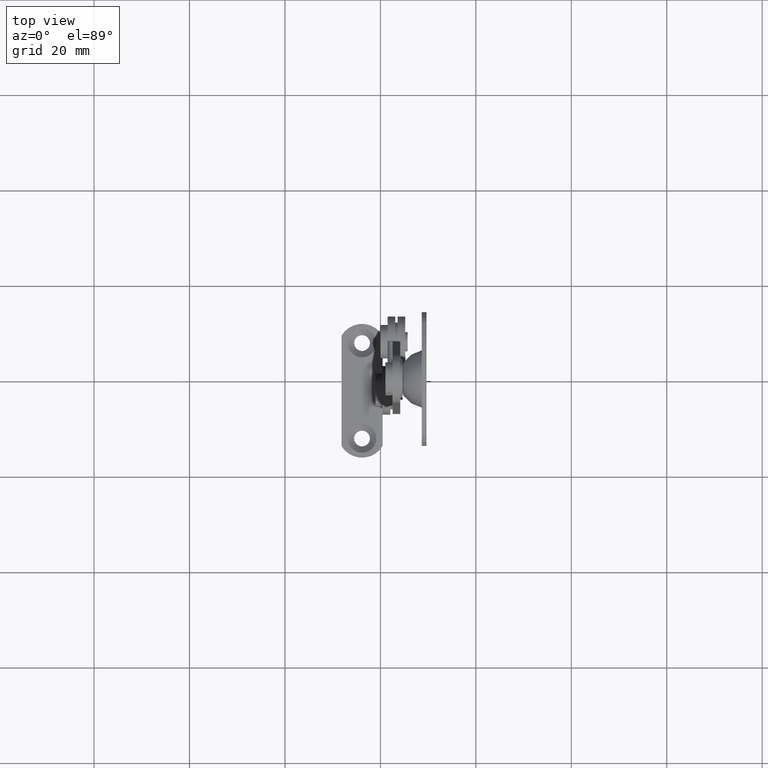
[diagram: clean part render]
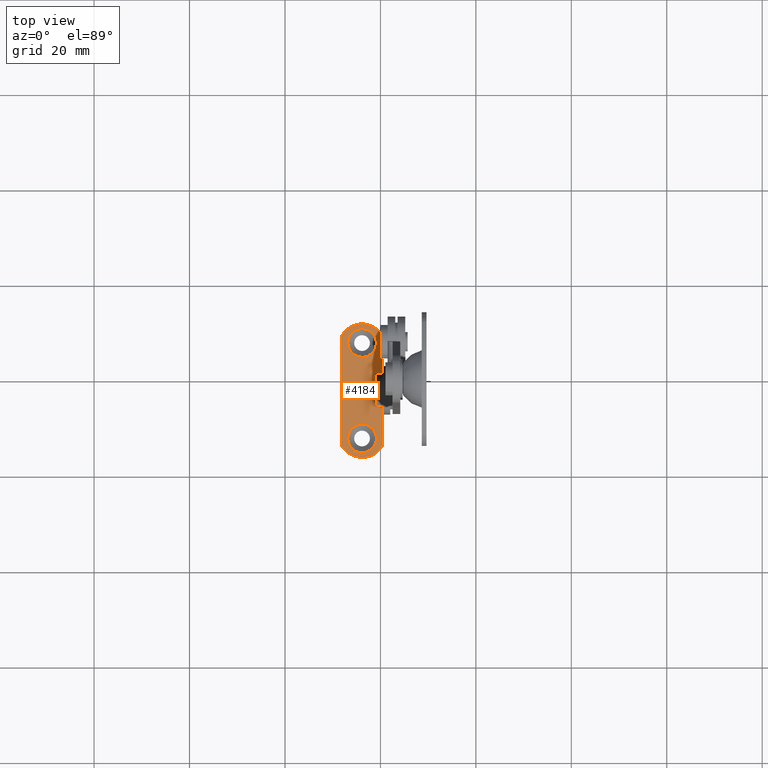
[diagram: same view with one face highlighted and labeled with its STEP entity id]
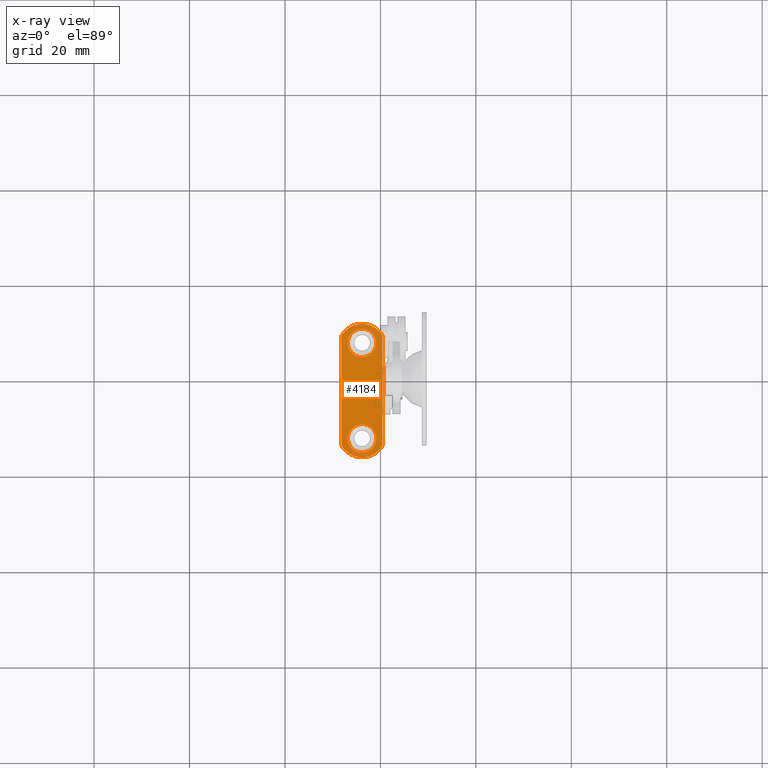
[diagram: x-ray of the same camera — body ghosted, the highlighted face saturated]
A machine part, top view. The second image highlights one B-rep face of the part: STEP entity #4184.
The next image is the same camera in x-ray: the body ghosted, the highlighted face saturated — about 1% of this face is hidden behind the body in this view.
In plain terms, the highlighted face is a freeform B-spline surface patch.
Its self-contained STEP definition (entity closure, byte-faithful):
#2873=CARTESIAN_POINT('',(-5.942301229517680,1.149952148418116,-72.999979357336059));
#2874=VERTEX_POINT('',#2873);
#2880=CARTESIAN_POINT('',(-6.850005999999895,-1.0,-72.999978999999897));
#2881=VERTEX_POINT('',#2880);
#2882=CARTESIAN_POINT('',(-6.850005999999895,-1.0,-72.999978999999897));
#2883=CARTESIAN_POINT('',(-6.850218989928229,-0.675369198794552,-72.999979053955755));
#2884=CARTESIAN_POINT('',(-6.780427127563971,-0.251048804380021,-72.999979124480490));
#2885=CARTESIAN_POINT('',(-6.487795155820862,0.493536098918521,-72.999979248235334));
#2886=CARTESIAN_POINT('',(-6.211010686060221,0.888950704833347,-72.999979313956118));
#2887=CARTESIAN_POINT('',(-5.942301229517680,1.149952148418116,-72.999979357336059));
#2888=B_SPLINE_CURVE_WITH_KNOTS('',3,(#2882,#2883,#2884,#2885,#2886,#2887),.UNSPECIFIED.,.F.,.U.,(4,1,1,4),(0.000000057039701,0.973810430933622,1.273409008303061,2.397027177787062),.UNSPECIFIED.);
#2889=EDGE_CURVE('',#2881,#2874,#2888,.T.);
#2891=CARTESIAN_POINT('',(-3.850008859744598,-3.999999999998637,-72.999978999999897));
#2892=VERTEX_POINT('',#2891);
#2893=CARTESIAN_POINT('',(-3.850008859744598,-3.999999999998637,-72.999978999999897));
#2894=CARTESIAN_POINT('',(-4.267386271210840,-4.000568712994049,-72.999978999999925));
#2895=CARTESIAN_POINT('',(-4.880405168840758,-3.869780258269420,-72.999978999999797));
#2896=CARTESIAN_POINT('',(-5.717468229398588,-3.395762596432844,-72.999978999999982));
#2897=CARTESIAN_POINT('',(-6.245735975841518,-2.867437475291229,-72.999978999999797));
#2898=CARTESIAN_POINT('',(-6.719853580144698,-2.030418693020270,-72.999979000000110));
#2899=CARTESIAN_POINT('',(-6.850505044609018,-1.417362050761259,-72.999978999999499));
#2900=CARTESIAN_POINT('',(-6.850005999999895,-1.0,-72.999978999999897));
#2901=B_SPLINE_CURVE_WITH_KNOTS('',3,(#2893,#2894,#2895,#2896,#2897,#2898,#2899,#2900),.UNSPECIFIED.,.F.,.U.,(4,1,1,1,1,4),(0.000000211583022,1.251763602641901,1.840824332273807,2.871678993607191,3.460742279999296,4.712505621174503),.UNSPECIFIED.);
#2902=EDGE_CURVE('',#2892,#2881,#2901,.T.);
#2904=CARTESIAN_POINT('',(-0.850005999999895,-1.0,-72.999978999999897));
#2905=VERTEX_POINT('',#2904);
#2906=CARTESIAN_POINT('',(-0.850005999999895,-1.0,-72.999978999999897));
#2907=CARTESIAN_POINT('',(-0.849701149109087,-1.368200384085724,-72.999979000000039));
#2908=CARTESIAN_POINT('',(-0.964422460562019,-1.981552721624138,-72.999978999999897));
#2909=CARTESIAN_POINT('',(-1.349200899321593,-2.701218930777777,-72.999978999999811));
#2910=CARTESIAN_POINT('',(-1.768036429324917,-3.186740562252411,-72.999979000000053));
#2911=CARTESIAN_POINT('',(-2.195782836634514,-3.520497907666941,-72.999978999999868));
#2912=CARTESIAN_POINT('',(-2.868572776069876,-3.880366967279468,-72.999978999999698));
#2913=CARTESIAN_POINT('',(-3.432657123610483,-4.000517610415209,-72.999979000000380));
#2914=CARTESIAN_POINT('',(-3.850008859744598,-3.999999999998637,-72.999978999999897));
#2915=B_SPLINE_CURVE_WITH_KNOTS('',3,(#2906,#2907,#2908,#2909,#2910,#2911,#2912,#2913,#2914),.UNSPECIFIED.,.F.,.U.,(4,1,1,1,1,1,4),(0.000000207667435,1.104490526259293,1.840825586216664,2.429860201590574,3.018925277931035,3.460744648516173,4.712508844853714),.UNSPECIFIED.);
#2916=EDGE_CURVE('',#2905,#2892,#2915,.T.);
#2918=CARTESIAN_POINT('',(-1.823234655406684,1.211832798082983,-72.999978643892206));
#2919=VERTEX_POINT('',#2918);
#2920=CARTESIAN_POINT('',(-1.823234655406684,1.211832798082983,-72.999978643892206));
#2921=CARTESIAN_POINT('',(-1.536401311826690,0.949549665973683,-72.999978686120144));
#2922=CARTESIAN_POINT('',(-1.036187710063707,0.268857669299456,-72.999978795712238));
#2923=CARTESIAN_POINT('',(-0.849282009242901,-0.559449839435028,-72.999978929070991));
#2924=CARTESIAN_POINT('',(-0.850005999999895,-1.0,-72.999978999999897));
#2925=B_SPLINE_CURVE_WITH_KNOTS('',3,(#2920,#2921,#2922,#2923,#2924),.UNSPECIFIED.,.F.,.U.,(4,1,4),(0.000000068466819,1.165871276881727,2.487164162707096),.UNSPECIFIED.);
#2926=EDGE_CURVE('',#2919,#2905,#2925,.T.);
#3019=CARTESIAN_POINT('',(-3.850003140255179,1.999999999998637,-72.999978999999897));
#3020=VERTEX_POINT('',#3019);
#3021=CARTESIAN_POINT('',(-3.850003140255179,1.999999999998637,-72.999978999999897));
#3022=CARTESIAN_POINT('',(-3.502263211762108,2.000250247651996,-72.999978938901265));
#3023=CARTESIAN_POINT('',(-2.760691848028319,1.869536393232265,-72.999978808605462));
#3024=CARTESIAN_POINT('',(-2.113531754178370,1.478399484119034,-72.999978694898147));
#3025=CARTESIAN_POINT('',(-1.823234655406684,1.211832798082983,-72.999978643892206));
#3026=B_SPLINE_CURVE_WITH_KNOTS('',3,(#3021,#3022,#3023,#3024,#3025),.UNSPECIFIED.,.F.,.U.,(4,1,4),(0.000000056523441,1.043144497545940,2.225342142645709),.UNSPECIFIED.);
#3027=EDGE_CURVE('',#3020,#2919,#3026,.T.);
#3029=CARTESIAN_POINT('',(-5.942301229517680,1.149952148418116,-72.999979357336059));
#3030=CARTESIAN_POINT('',(-5.752215447693498,1.335046391858251,-72.999979324871973));
#3031=CARTESIAN_POINT('',(-5.381104254176597,1.610708564570520,-72.999979261491177));
#3032=CARTESIAN_POINT('',(-4.669957586845009,1.919816499357211,-72.999979140037070));
#3033=CARTESIAN_POINT('',(-4.163583574527535,2.000180329749025,-72.999979053555279));
#3034=CARTESIAN_POINT('',(-3.850003140255179,1.999999999998637,-72.999978999999897));
#3035=B_SPLINE_CURVE_WITH_KNOTS('',3,(#3029,#3030,#3031,#3032,#3033,#3034),.UNSPECIFIED.,.F.,.U.,(4,1,1,4),(0.000000068842317,0.795949806508130,1.374798011434021,2.315482178247414),.UNSPECIFIED.);
#3036=EDGE_CURVE('',#2874,#3020,#3035,.T.);
#3407=CARTESIAN_POINT('',(-5.942301229517678,21.149952148418109,-72.999979357336045));
#3408=VERTEX_POINT('',#3407);
#3414=CARTESIAN_POINT('',(-6.850005999999895,19.0,-72.999978999999897));
#3415=VERTEX_POINT('',#3414);
#3416=CARTESIAN_POINT('',(-6.850005999999895,19.0,-72.999978999999897));
#3417=CARTESIAN_POINT('',(-6.850354366169704,19.374581860466272,-72.999979062257907));
#3418=CARTESIAN_POINT('',(-6.698299081819488,20.173257505995000,-72.999979195003050));
#3419=CARTESIAN_POINT('',(-6.246986715433002,20.854283588281120,-72.999979308193915));
#3420=CARTESIAN_POINT('',(-5.942301229517678,21.149952148418109,-72.999979357336045));
#3421=B_SPLINE_CURVE_WITH_KNOTS('',3,(#3416,#3417,#3418,#3419,#3420),.UNSPECIFIED.,.F.,.U.,(4,1,4),(0.000000057039419,1.123618226463416,2.397027177787050),.UNSPECIFIED.);
#3422=EDGE_CURVE('',#3415,#3408,#3421,.T.);
#3424=CARTESIAN_POINT('',(-3.850008859744598,16.000000000001361,-72.999978999999897));
#3425=VERTEX_POINT('',#3424);
#3426=CARTESIAN_POINT('',(-3.850008859744598,16.000000000001361,-72.999978999999897));
#3427=CARTESIAN_POINT('',(-4.169098705786010,15.999839575161181,-72.999978999999868));
#3428=CARTESIAN_POINT('',(-4.684401398580061,16.083021316525748,-72.999979000000025));
#3429=CARTESIAN_POINT('',(-5.338255474697611,16.372928642132411,-72.999978999999740));
#3430=CARTESIAN_POINT('',(-5.862522108758886,16.742128166240299,-72.999979000000280));
#3431=CARTESIAN_POINT('',(-6.261081865285761,17.181860387974929,-72.999978999999556));
#3432=CARTESIAN_POINT('',(-6.590027895377809,17.730718352720029,-72.999979000000224));
#3433=CARTESIAN_POINT('',(-6.798312838837375,18.312780015667720,-72.999978999999854));
#3434=CARTESIAN_POINT('',(-6.850034703132566,18.779117513572849,-72.999978999999726));
#3435=CARTESIAN_POINT('',(-6.850005999999895,19.0,-72.999978999999897));
#3436=B_SPLINE_CURVE_WITH_KNOTS('',3,(#3426,#3427,#3428,#3429,#3430,#3431,#3432,#3433,#3434,#3435),.UNSPECIFIED.,.F.,.U.,(4,1,1,1,1,1,1,4),(0.000000211585403,0.957225493578220,1.546309283902950,2.135402764129567,2.871678993607744,3.313480372305215,4.049835322517533,4.712505621174487),.UNSPECIFIED.);
#3437=EDGE_CURVE('',#3425,#3415,#3436,.T.);
#3439=CARTESIAN_POINT('',(-0.850005999999895,19.0,-72.999978999999897));
#3440=VERTEX_POINT('',#3439);
#3441=CARTESIAN_POINT('',(-0.850005999999895,19.0,-72.999978999999897));
#3442=CARTESIAN_POINT('',(-0.849685120039970,18.631782803692371,-72.999978999999925));
#3443=CARTESIAN_POINT('',(-0.955299247823350,18.067556011982749,-72.999978999999925));
#3444=CARTESIAN_POINT('',(-1.343423340615432,17.296523118724782,-72.999978999999897));
#3445=CARTESIAN_POINT('',(-1.894242905749194,16.657585759007159,-72.999978999999769));
#3446=CARTESIAN_POINT('',(-2.770252653349076,16.132665846255598,-72.999979000000536));
#3447=CARTESIAN_POINT('',(-3.481810378968332,15.999688339004051,-72.999978999999684));
#3448=CARTESIAN_POINT('',(-3.850008859744598,16.000000000001361,-72.999978999999897));
#3449=B_SPLINE_CURVE_WITH_KNOTS('',3,(#3441,#3442,#3443,#3444,#3445,#3446,#3447,#3448),.UNSPECIFIED.,.F.,.U.,(4,1,1,1,1,4),(0.000000207664246,1.104490526257096,1.693582936675665,2.577104332744916,3.608018723587260,4.712508844853731),.UNSPECIFIED.);
#3450=EDGE_CURVE('',#3440,#3425,#3449,.T.);
#3452=CARTESIAN_POINT('',(-1.823234655406688,21.211832798082980,-72.999978643892206));
#3453=VERTEX_POINT('',#3452);
#3454=CARTESIAN_POINT('',(-1.823234655406688,21.211832798082980,-72.999978643892206));
#3455=CARTESIAN_POINT('',(-1.536374248006943,20.949551445332322,-72.999978686119761));
#3456=CARTESIAN_POINT('',(-1.176963261209024,20.460291836674699,-72.999978764891338));
#3457=CARTESIAN_POINT('',(-0.901626458194258,19.673555056399220,-72.999978891556509));
#3458=CARTESIAN_POINT('',(-0.849956199480968,19.233169534690340,-72.999978962459593));
#3459=CARTESIAN_POINT('',(-0.850005999999895,19.0,-72.999978999999897));
#3460=B_SPLINE_CURVE_WITH_KNOTS('',3,(#3454,#3455,#3456,#3457,#3458,#3459),.UNSPECIFIED.,.F.,.U.,(4,1,1,4),(0.000000068467474,1.165871276882099,1.787647870555699,2.487164162707093),.UNSPECIFIED.);
#3461=EDGE_CURVE('',#3453,#3440,#3460,.T.);
#3493=CARTESIAN_POINT('',(-3.850003140255179,21.999999999998639,-72.999978999999897));
#3494=VERTEX_POINT('',#3493);
#3495=CARTESIAN_POINT('',(-3.850003140255179,21.999999999998639,-72.999978999999897));
#3496=CARTESIAN_POINT('',(-3.455884177363151,22.000405930666261,-72.999978930752434));
#3497=CARTESIAN_POINT('',(-2.714502197343584,21.851576703678290,-72.999978800489799));
#3498=CARTESIAN_POINT('',(-2.079444302705832,21.446944827484440,-72.999978688908925));
#3499=CARTESIAN_POINT('',(-1.823234655406688,21.211832798082980,-72.999978643892206));
#3500=B_SPLINE_CURVE_WITH_KNOTS('',3,(#3495,#3496,#3497,#3498,#3499),.UNSPECIFIED.,.F.,.U.,(4,1,4),(0.000000056523574,1.182197701606070,2.225342142645710),.UNSPECIFIED.);
#3501=EDGE_CURVE('',#3494,#3453,#3500,.T.);
#3503=CARTESIAN_POINT('',(-5.942301229517678,21.149952148418109,-72.999979357336045));
#3504=CARTESIAN_POINT('',(-5.648767701213006,21.436348742987910,-72.999979307204441));
#3505=CARTESIAN_POINT('',(-4.983383954002060,21.858570113067859,-72.999979193566205));
#3506=CARTESIAN_POINT('',(-4.211838733784216,22.000303957798661,-72.999979061796381));
#3507=CARTESIAN_POINT('',(-3.850003140255179,21.999999999998639,-72.999978999999897));
#3508=B_SPLINE_CURVE_WITH_KNOTS('',3,(#3503,#3504,#3505,#3506,#3507),.UNSPECIFIED.,.F.,.U.,(4,1,4),(0.000000068842224,1.230082689422213,2.315482178247412),.UNSPECIFIED.);
#3509=EDGE_CURVE('',#3408,#3494,#3508,.T.);
#3822=CARTESIAN_POINT('',(0.449997000000146,14.0,-72.999979000000010));
#3823=VERTEX_POINT('',#3822);
#3829=CARTESIAN_POINT('',(0.449997000000110,4.0,-72.999979000000010));
#3830=VERTEX_POINT('',#3829);
#3831=CARTESIAN_POINT('',(0.449997000000146,14.0,-72.999979000000010));
#3832=CARTESIAN_POINT('',(0.449997000000110,4.0,-72.999979000000010));
#3833=QUASI_UNIFORM_CURVE('',1,(#3831,#3832),.UNSPECIFIED.,.F.,.U.);
#3834=EDGE_CURVE('',#3823,#3830,#3833,.T.);
#3978=CARTESIAN_POINT('',(0.449997000000110,-2.551465108519215,-72.999979000000010));
#3979=VERTEX_POINT('',#3978);
#3980=CARTESIAN_POINT('',(0.449997000000110,4.0,-72.999979000000010));
#3981=CARTESIAN_POINT('',(0.449997000000110,-2.551465108519215,-72.999979000000010));
#3982=QUASI_UNIFORM_CURVE('',1,(#3980,#3981),.UNSPECIFIED.,.F.,.U.);
#3983=EDGE_CURVE('',#3830,#3979,#3982,.T.);
#4007=CARTESIAN_POINT('',(-8.150008999999901,20.551465000000000,-72.999979000000010));
#4008=VERTEX_POINT('',#4007);
#4009=CARTESIAN_POINT('',(0.449997032995677,20.551465052911549,-72.999979000000010));
#4010=VERTEX_POINT('',#4009);
#4011=CARTESIAN_POINT('',(-8.150008999999901,20.551465000000000,-72.999979000000010));
#4012=CARTESIAN_POINT('',(-7.984951906424000,20.829694215781430,-72.999978999999925));
#4013=CARTESIAN_POINT('',(-7.568558294746648,21.397687441553291,-72.999979000000167));
#4014=CARTESIAN_POINT('',(-6.798826590411606,22.083684258564318,-72.999979000000053));
#4015=CARTESIAN_POINT('',(-5.763121443066940,22.673585438297430,-72.999978999999755));
#4016=CARTESIAN_POINT('',(-4.609359675878415,22.999114977644030,-72.999979000000295));
#4017=CARTESIAN_POINT('',(-3.361354269897058,23.019204464582799,-72.999978999999712));
#4018=CARTESIAN_POINT('',(-2.273386995914219,22.786967119364089,-72.999979000000053));
#4019=CARTESIAN_POINT('',(-1.213084775663619,22.302475336024219,-72.999979000000224));
#4020=CARTESIAN_POINT('',(-0.270470082802170,21.566000805876651,-72.999978999999442));
#4021=CARTESIAN_POINT('',(0.243702358209297,20.899294822507269,-72.999979000000209));
#4022=CARTESIAN_POINT('',(0.449997032995677,20.551465052911549,-72.999979000000010));
#4023=B_SPLINE_CURVE_WITH_KNOTS('',3,(#4011,#4012,#4013,#4014,#4015,#4016,#4017,#4018,#4019,#4020,#4021,#4022),.UNSPECIFIED.,.F.,.U.,(4,1,1,1,1,1,1,1,1,4),(0.000000329975009,0.970524722925353,2.102902504672016,3.073496244005504,4.529363635109480,5.661634609565742,6.794006884980216,7.845499490701672,9.139604829000353,10.352821482246791),.UNSPECIFIED.);
#4024=EDGE_CURVE('',#4008,#4010,#4023,.T.);
#4063=CARTESIAN_POINT('',(-8.150008999999901,-2.551465000000000,-72.999979000000010));
#4064=VERTEX_POINT('',#4063);
#4065=CARTESIAN_POINT('',(-8.150008999999901,-2.551465000000000,-72.999979000000010));
#4066=CARTESIAN_POINT('',(-8.150008999999901,20.551465000000000,-72.999979000000010));
#4067=QUASI_UNIFORM_CURVE('',1,(#4065,#4066),.UNSPECIFIED.,.F.,.U.);
#4068=EDGE_CURVE('',#4064,#4008,#4067,.T.);
#4100=CARTESIAN_POINT('',(0.449997000000110,-2.551465108519215,-72.999979000000010));
#4101=CARTESIAN_POINT('',(0.229990701474371,-2.922506636847241,-72.999978999999925));
#4102=CARTESIAN_POINT('',(-0.273402255604366,-3.564205993248618,-72.999979000000096));
#4103=CARTESIAN_POINT('',(-1.128657795639538,-4.232403120659195,-72.999978999999939));
#4104=CARTESIAN_POINT('',(-2.045511902805177,-4.697098631895385,-72.999979000000096));
#4105=CARTESIAN_POINT('',(-3.090032797801940,-4.991886926593921,-72.999978999999755));
#4106=CARTESIAN_POINT('',(-4.285605037110553,-5.030578274037957,-72.999979000000323));
#4107=CARTESIAN_POINT('',(-5.453166759864722,-4.781330410301455,-72.999978999999854));
#4108=CARTESIAN_POINT('',(-6.387454766373814,-4.345129626964170,-72.999979000000252));
#4109=CARTESIAN_POINT('',(-7.348588384028386,-3.643160744360935,-72.999978999999797));
#4110=CARTESIAN_POINT('',(-7.875090000120573,-3.015360397545601,-72.999979000000167));
#4111=CARTESIAN_POINT('',(-8.150008999999901,-2.551465000000000,-72.999979000000010));
#4112=B_SPLINE_CURVE_WITH_KNOTS('',3,(#4100,#4101,#4102,#4103,#4104,#4105,#4106,#4107,#4108,#4109,#4110,#4111),.UNSPECIFIED.,.F.,.U.,(4,1,1,1,1,1,1,1,1,4),(0.000000329977139,1.294063661383653,2.426439660710335,3.235279003311661,4.367652163030100,5.661634575247623,6.794006843797170,7.926384522057862,8.735225441832506,10.352821419489780),.UNSPECIFIED.);
#4113=EDGE_CURVE('',#3979,#4064,#4112,.T.);
#4140=CARTESIAN_POINT('',(0.449997032995677,20.551465052911549,-72.999979000000010));
#4141=CARTESIAN_POINT('',(0.449997000000146,14.0,-72.999979000000010));
#4142=QUASI_UNIFORM_CURVE('',1,(#4140,#4141),.UNSPECIFIED.,.F.,.U.);
#4143=EDGE_CURVE('',#4010,#3823,#4142,.T.);
#4155=CARTESIAN_POINT('',(-8.579579446140956,-6.398555374755606,-72.999978999999897));
#4156=CARTESIAN_POINT('',(0.879567556026778,-6.398555374755606,-72.999978999999897));
#4157=CARTESIAN_POINT('',(-8.579579446140956,24.398617457547392,-72.999978999999897));
#4158=CARTESIAN_POINT('',(0.879567556026778,24.398617457547392,-72.999978999999897));
#4159=B_SPLINE_SURFACE_WITH_KNOTS('',1,1,((#4155,#4157),(#4156,#4158)),.UNSPECIFIED.,.F.,.F.,.U.,(2,2),(2,2),(0.0,9.459147002167734),(0.0,30.797172832303001),.UNSPECIFIED.);
#4160=ORIENTED_EDGE('',*,*,#4113,.F.);
#4161=ORIENTED_EDGE('',*,*,#3983,.F.);
#4162=ORIENTED_EDGE('',*,*,#3834,.F.);
#4163=ORIENTED_EDGE('',*,*,#4143,.F.);
#4164=ORIENTED_EDGE('',*,*,#4024,.F.);
#4165=ORIENTED_EDGE('',*,*,#4068,.F.);
#4166=EDGE_LOOP('',(#4160,#4161,#4162,#4163,#4164,#4165));
#4167=FACE_OUTER_BOUND('',#4166,.T.);
#4168=ORIENTED_EDGE('',*,*,#2916,.T.);
#4169=ORIENTED_EDGE('',*,*,#2902,.T.);
#4170=ORIENTED_EDGE('',*,*,#2889,.T.);
#4171=ORIENTED_EDGE('',*,*,#3036,.T.);
#4172=ORIENTED_EDGE('',*,*,#3027,.T.);
#4173=ORIENTED_EDGE('',*,*,#2926,.T.);
#4174=EDGE_LOOP('',(#4168,#4169,#4170,#4171,#4172,#4173));
#4175=FACE_BOUND('',#4174,.T.);
#4176=ORIENTED_EDGE('',*,*,#3450,.T.);
#4177=ORIENTED_EDGE('',*,*,#3437,.T.);
#4178=ORIENTED_EDGE('',*,*,#3422,.T.);
#4179=ORIENTED_EDGE('',*,*,#3509,.T.);
#4180=ORIENTED_EDGE('',*,*,#3501,.T.);
#4181=ORIENTED_EDGE('',*,*,#3461,.T.);
#4182=EDGE_LOOP('',(#4176,#4177,#4178,#4179,#4180,#4181));
#4183=FACE_BOUND('',#4182,.T.);
#4184=ADVANCED_FACE('',(#4167,#4175,#4183),#4159,.T.);